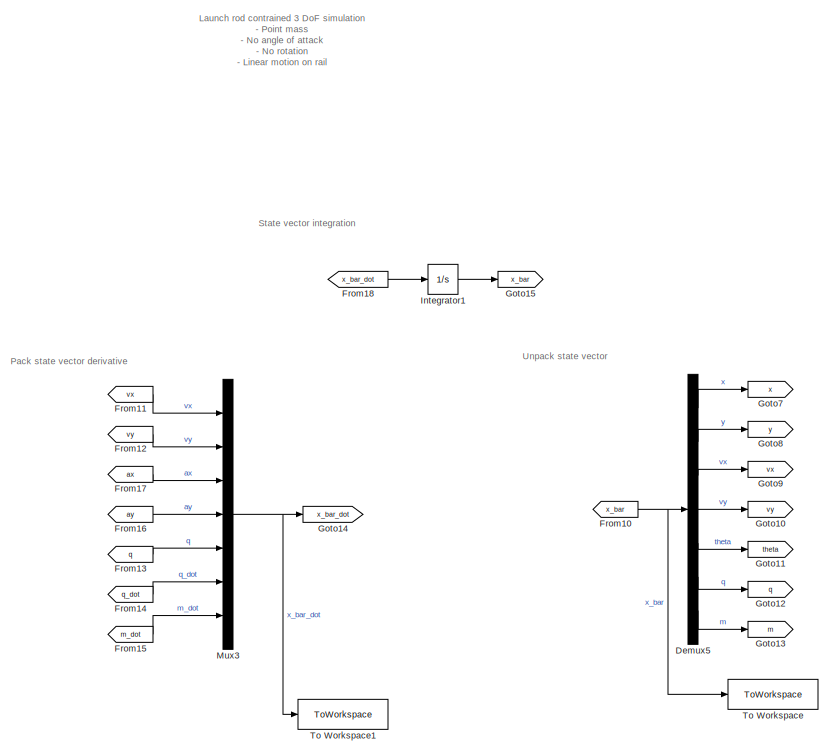
[diagram: root canvas - part 1/2, top center region]
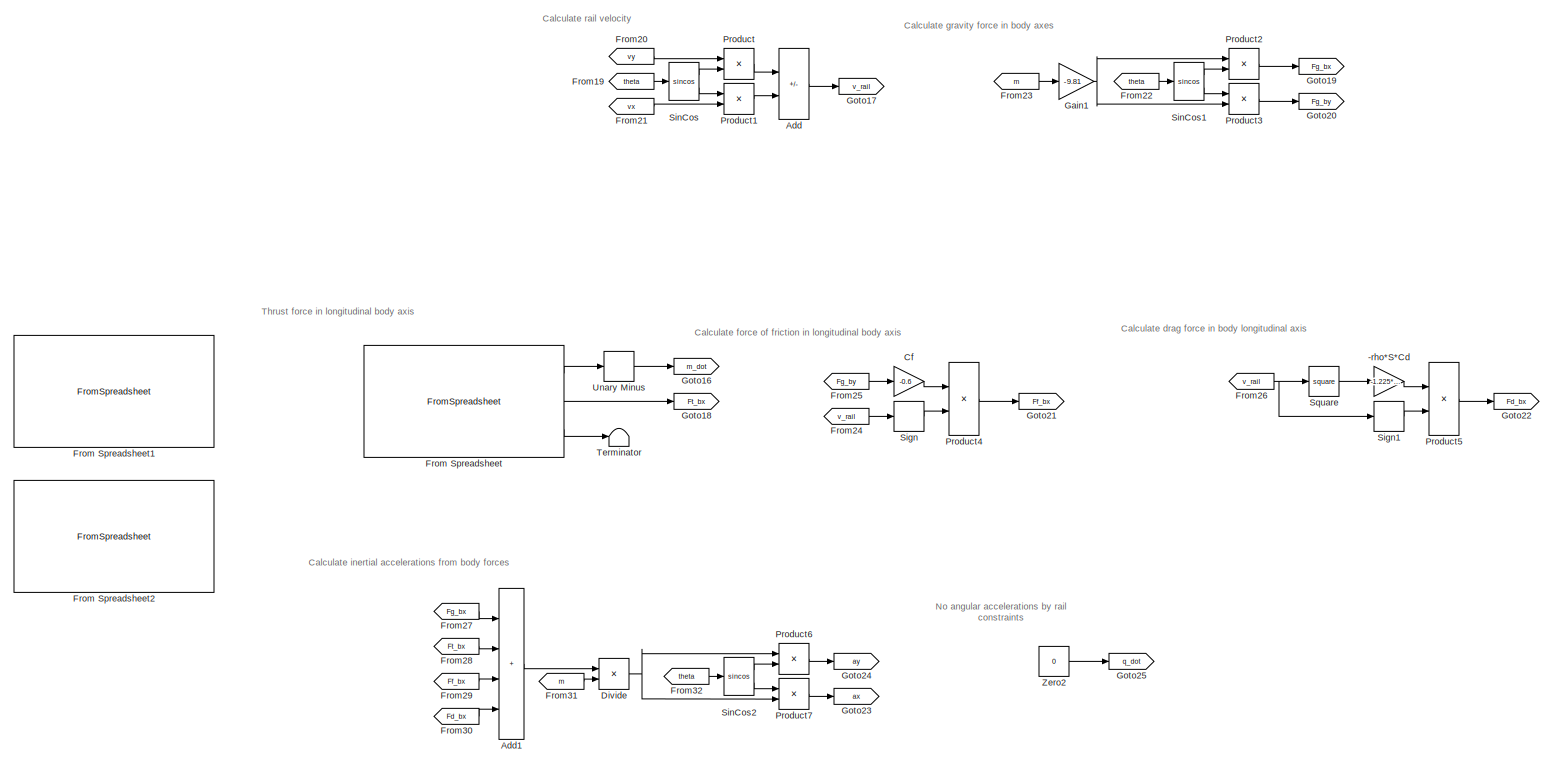
[diagram: root canvas - part 2/2, full width, bottom band]
MODEL slx_bedb44c837fe
KIND model
CONFIG AbsTol = auto
CONFIG EnableMultiTasking = off
CONFIG FixedStep = auto
CONFIG MaxStep = auto
CONFIG MinStep = auto
CONFIG RelTol = 1e-6
CONFIG SampleTimeConstraint = Unconstrained
CONFIG SolverName = VariableStepAuto
CONFIG StartTime = 0.0
CONFIG StopTime = 60
BLOCK [Gain] -rho*S*Cd
  Gain = -1.225*(pi/4*0.1524^2)*0.5
  NameLocation = top
BLOCK [Sum] Add
  IconShape = rectangular
  Inputs = -+
  Ports = [2, 1]
BLOCK [Sum] Add1
  IconShape = rectangular
  Inputs = ++++
  Ports = [4, 1]
BLOCK [Gain] Cf
  Gain = -0.6
  NameLocation = top
BLOCK [Demux] Demux5
  Outputs = 7
  Ports = [1, 7]
BLOCK [Product] Divide
  Inputs = */
  Ports = [2, 1]
BLOCK [FromSpreadsheet] From Spreadsheet
  ExtrapolationAfterLastDataPoint = Ground value
  ExtrapolationBeforeFirstDataPoint = Ground value
  FileName = thrust_data_output_cavitating.xlsx
  Ports = [0, 3]
  Range = A1:A155,H1:H155,Q1:R155
BLOCK [FromSpreadsheet] From Spreadsheet1
  Commented = on
  ExtrapolationAfterLastDataPoint = Ground value
  ExtrapolationBeforeFirstDataPoint = Ground value
  FileName = thrust_data_output_incompressible.xlsx
  Ports = [0, 3]
  Range = A1:A155,H1:H155,Q1:R155
BLOCK [FromSpreadsheet] From Spreadsheet2
  Commented = on
  ExtrapolationAfterLastDataPoint = Ground value
  ExtrapolationBeforeFirstDataPoint = Ground value
  FileName = thrust_data_output_cavitating.xlsx
  Ports = [0, 3]
  Range = A1:A155,H1:H155,Q1:R155
BLOCK [From] From10
  GotoTag = x_bar
BLOCK [From] From11
  GotoTag = vx
BLOCK [From] From12
  GotoTag = vy
BLOCK [From] From13
  GotoTag = q
BLOCK [From] From14
  GotoTag = q_dot
BLOCK [From] From15
  GotoTag = m_dot
BLOCK [From] From16
  GotoTag = ay
BLOCK [From] From17
  GotoTag = ax
BLOCK [From] From18
  GotoTag = x_bar_dot
BLOCK [From] From19
  GotoTag = theta
BLOCK [From] From20
  GotoTag = vy
BLOCK [From] From21
  GotoTag = vx
BLOCK [From] From22
  GotoTag = theta
BLOCK [From] From23
  GotoTag = m
BLOCK [From] From24
  GotoTag = v_rail
BLOCK [From] From25
  GotoTag = Fg_by
BLOCK [From] From26
  GotoTag = v_rail
BLOCK [From] From27
  GotoTag = Fg_bx
BLOCK [From] From28
  GotoTag = Ft_bx
BLOCK [From] From29
  GotoTag = Ff_bx
BLOCK [From] From30
  GotoTag = Fd_bx
BLOCK [From] From31
  GotoTag = m
BLOCK [From] From32
  GotoTag = theta
BLOCK [Gain] Gain1
  Gain = -9.81
BLOCK [Goto] Goto10
  GotoTag = vy
BLOCK [Goto] Goto11
  GotoTag = theta
BLOCK [Goto] Goto12
  GotoTag = q
BLOCK [Goto] Goto13
  GotoTag = m
BLOCK [Goto] Goto14
  GotoTag = x_bar_dot
BLOCK [Goto] Goto15
  GotoTag = x_bar
BLOCK [Goto] Goto16
  GotoTag = m_dot
BLOCK [Goto] Goto17
  GotoTag = v_rail
BLOCK [Goto] Goto18
  GotoTag = Ft_bx
BLOCK [Goto] Goto19
  GotoTag = Fg_bx
BLOCK [Goto] Goto20
  GotoTag = Fg_by
BLOCK [Goto] Goto21
  GotoTag = Ff_bx
BLOCK [Goto] Goto22
  GotoTag = Fd_bx
BLOCK [Goto] Goto23
  GotoTag = ax
BLOCK [Goto] Goto24
  GotoTag = ay
BLOCK [Goto] Goto25
  GotoTag = q_dot
BLOCK [Goto] Goto7
  GotoTag = x
BLOCK [Goto] Goto8
  GotoTag = y
BLOCK [Goto] Goto9
  GotoTag = vx
BLOCK [Integrator] Integrator1
  InitialCondition = [0;0;0;0;deg2rad(85);0;57]
  Ports = [1, 1]
BLOCK [Mux] Mux3
  DisplayOption = bar
  Inputs = 7
  Ports = [7, 1]
BLOCK [Product] Product
  Ports = [2, 1]
BLOCK [Product] Product1
  Ports = [2, 1]
BLOCK [Product] Product2
  Ports = [2, 1]
BLOCK [Product] Product3
  Ports = [2, 1]
BLOCK [Product] Product4
  Ports = [2, 1]
BLOCK [Product] Product5
  Ports = [2, 1]
BLOCK [Product] Product6
  Ports = [2, 1]
BLOCK [Product] Product7
  Ports = [2, 1]
BLOCK [Signum] Sign
BLOCK [Signum] Sign1
BLOCK [Trigonometry] SinCos
  Operator = sincos
  Ports = [1, 2]
BLOCK [Trigonometry] SinCos1
  Operator = sincos
  Ports = [1, 2]
BLOCK [Trigonometry] SinCos2
  Operator = sincos
  Ports = [1, 2]
BLOCK [Math] Square
  Operator = square
  Ports = [1, 1]
BLOCK [Terminator] Terminator
BLOCK [ToWorkspace] To Workspace
  FixptAsFi = on
  MaxDataPoints = inf
  Ports = [1]
  SampleTime = -1
  SaveFormat = Timeseries
  VariableName = x_bar
BLOCK [ToWorkspace] To Workspace1
  FixptAsFi = on
  MaxDataPoints = inf
  Ports = [1]
  SampleTime = -1
  SaveFormat = Timeseries
  VariableName = x_bar_dot
BLOCK [UnaryMinus] Unary Minus
BLOCK [Constant] Zero2
  OutDataTypeStr = Inherit: Inherit via back propagation
  SampleTime = -1
  Value = 0
ANNOTATION (root): Launch rod contrained 3 DoF simulation - Point mass - No angle of attack - No rotation - Linear motion on rail
ANNOTATION (root): Calculate drag force in body longitudinal axis
ANNOTATION (root): Calculate force of friction in longitudinal body axis
ANNOTATION (root): Calculate gravity force in body axes
ANNOTATION (root): Calculate inertial accelerations from body forces
ANNOTATION (root): Calculate rail velocity
ANNOTATION (root): No angular accelerations by rail constraints
ANNOTATION (root): Pack state vector derivative
ANNOTATION (root): State vector integration
ANNOTATION (root): Thrust force in longitudinal body axis
ANNOTATION (root): Unpack state vector
LINE -rho*S*Cd:1 -> Product5:1
LINE Add1:1 -> Divide:1
LINE Add:1 -> Goto17:1
LINE Cf:1 -> Product4:1
LINE Demux5:1 -> Goto7:1
LINE Demux5:2 -> Goto8:1
LINE Demux5:3 -> Goto9:1
LINE Demux5:4 -> Goto10:1
LINE Demux5:5 -> Goto11:1
LINE Demux5:6 -> Goto12:1
LINE Demux5:7 -> Goto13:1
NET Divide:1 -> Product6:1, Product7:2
LINE From Spreadsheet:1 -> Unary Minus:1
LINE From Spreadsheet:2 -> Goto18:1
LINE From Spreadsheet:3 -> Terminator:1
NET From10:1 -> Demux5:1, To Workspace:1
LINE From11:1 -> Mux3:1
LINE From12:1 -> Mux3:2
LINE From13:1 -> Mux3:5
LINE From14:1 -> Mux3:6
LINE From15:1 -> Mux3:7
LINE From16:1 -> Mux3:4
LINE From17:1 -> Mux3:3
LINE From18:1 -> Integrator1:1
LINE From19:1 -> SinCos:1
LINE From20:1 -> Product:1
LINE From21:1 -> Product1:2
LINE From22:1 -> SinCos1:1
LINE From23:1 -> Gain1:1
LINE From24:1 -> Sign:1
LINE From25:1 -> Cf:1
NET From26:1 -> Sign1:1, Square:1
LINE From27:1 -> Add1:1
LINE From28:1 -> Add1:2
LINE From29:1 -> Add1:3
LINE From30:1 -> Add1:4
LINE From31:1 -> Divide:2
LINE From32:1 -> SinCos2:1
NET Gain1:1 -> Product2:1, Product3:2
LINE Integrator1:1 -> Goto15:1
NET Mux3:1 -> Goto14:1, To Workspace1:1
LINE Product1:1 -> Add:2
LINE Product2:1 -> Goto19:1
LINE Product3:1 -> Goto20:1
LINE Product4:1 -> Goto21:1
LINE Product5:1 -> Goto22:1
LINE Product6:1 -> Goto24:1
LINE Product7:1 -> Goto23:1
LINE Product:1 -> Add:1
LINE Sign1:1 -> Product5:2
LINE Sign:1 -> Product4:2
LINE SinCos1:1 -> Product2:2
LINE SinCos1:2 -> Product3:1
LINE SinCos2:1 -> Product6:2
LINE SinCos2:2 -> Product7:1
LINE SinCos:1 -> Product:2
LINE SinCos:2 -> Product1:1
LINE Square:1 -> -rho*S*Cd:1
LINE Unary Minus:1 -> Goto16:1
LINE Zero2:1 -> Goto25:1
note: NET lines group one-source signal fan-out (src -> all destinations, sorted); 1:1 wires keep LINE
